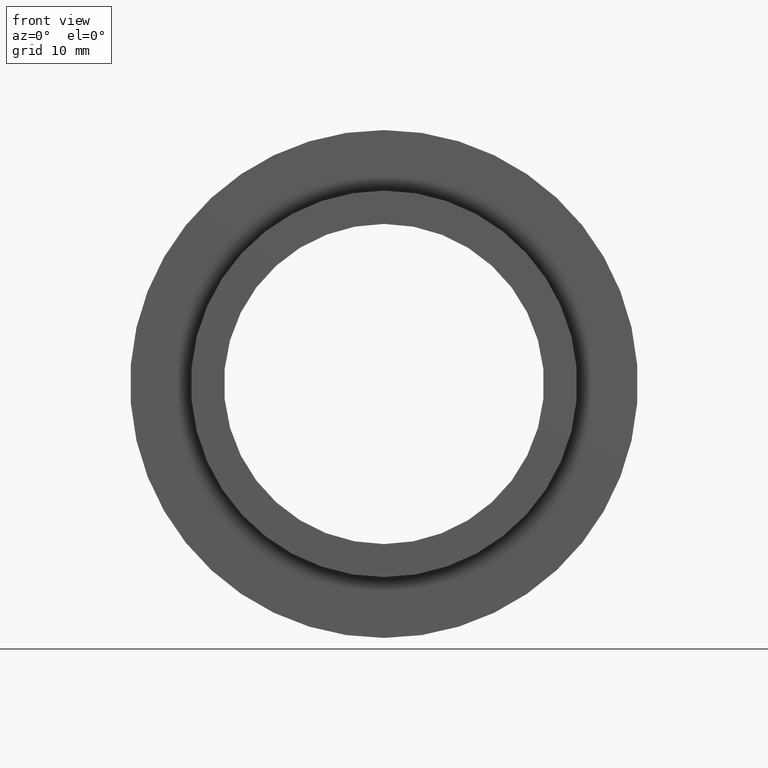
[diagram: clean part render]
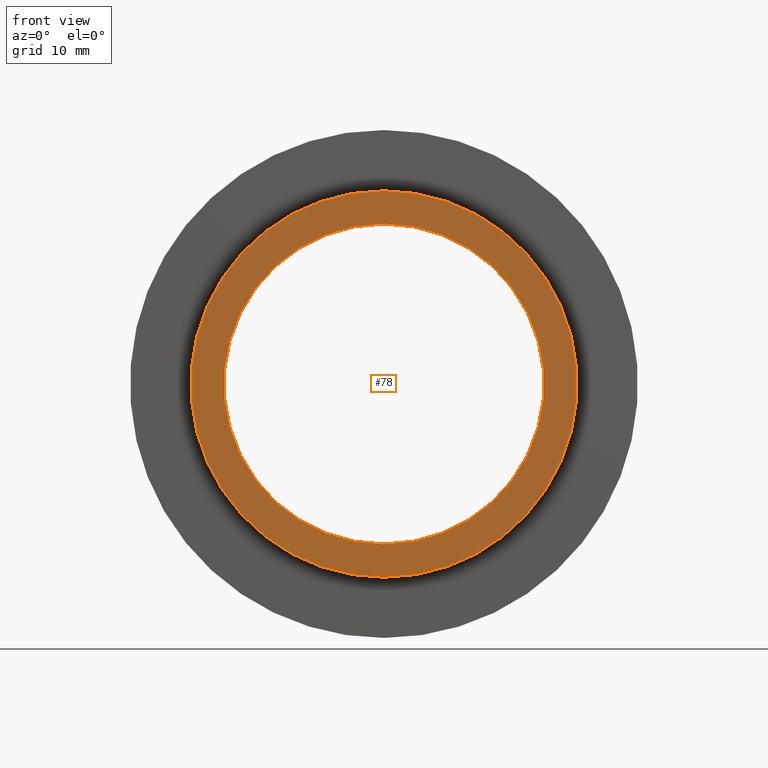
[diagram: same view with one face highlighted and labeled with its STEP entity id]
A machine part, front view. The second image highlights one B-rep face of the part: STEP entity #78.
In plain terms, the highlighted planar face has unit normal (0, 1, 0).
Its self-contained STEP definition (entity closure, byte-faithful):
#23 = AXIS2_PLACEMENT_3D ( 'NONE', #327, #277, #279 ) ;
#49 = DIRECTION ( 'NONE',  ( -0.0000000000000000000, -1.000000000000000000, -0.0000000000000000000 ) ) ;
#55 = AXIS2_PLACEMENT_3D ( 'NONE', #591, #633, #219 ) ;
#74 = CARTESIAN_POINT ( 'NONE',  ( 0.0000000000000000000, -3.508329487826542300E-015, 0.0000000000000000000 ) ) ;
#77 = EDGE_CURVE ( 'NONE', #355, #605, #442, .T. ) ;
#78 = ADVANCED_FACE ( 'NONE', ( #656, #90 ), #122, .F. ) ;
#81 = CIRCLE ( 'NONE', #485, 17.50000000000000000 ) ;
#90 = FACE_OUTER_BOUND ( 'NONE', #102, .T. ) ;
#102 = EDGE_LOOP ( 'NONE', ( #623, #384 ) ) ;
#103 = CARTESIAN_POINT ( 'NONE',  ( 1.775737858763662400E-015, -1.589908991977631700E-015, 14.50000000000000200 ) ) ;
#115 = CARTESIAN_POINT ( 'NONE',  ( 0.0000000000000000000, -3.508329487826542300E-015, -17.50000000000000000 ) ) ;
#121 = AXIS2_PLACEMENT_3D ( 'NONE', #74, #430, #322 ) ;
#122 = PLANE ( 'NONE',  #55 ) ;
#155 = ORIENTED_EDGE ( 'NONE', *, *, #431, .F. ) ;
#162 = EDGE_CURVE ( 'NONE', #375, #642, #341, .T. ) ;
#179 = ORIENTED_EDGE ( 'NONE', *, *, #77, .F. ) ;
#204 = DIRECTION ( 'NONE',  ( -0.0000000000000000000, -1.000000000000000000, -0.0000000000000000000 ) ) ;
#213 = CIRCLE ( 'NONE', #539, 14.50000000000000000 ) ;
#219 = DIRECTION ( 'NONE',  ( 0.0000000000000000000, -0.0000000000000000000, 1.000000000000000000 ) ) ;
#236 = CARTESIAN_POINT ( 'NONE',  ( 0.0000000000000000000, -1.589908991977631700E-015, -14.50000000000000000 ) ) ;
#237 = DIRECTION ( 'NONE',  ( 0.0000000000000000000, 0.0000000000000000000, -1.000000000000000000 ) ) ;
#242 = EDGE_LOOP ( 'NONE', ( #179, #155 ) ) ;
#277 = DIRECTION ( 'NONE',  ( -0.0000000000000000000, -1.000000000000000000, -0.0000000000000000000 ) ) ;
#279 = DIRECTION ( 'NONE',  ( 0.0000000000000000000, 0.0000000000000000000, -1.000000000000000000 ) ) ;
#322 = DIRECTION ( 'NONE',  ( 0.0000000000000000000, 0.0000000000000000000, -1.000000000000000000 ) ) ;
#327 = CARTESIAN_POINT ( 'NONE',  ( 0.0000000000000000000, -1.589908991977631700E-015, 0.0000000000000000000 ) ) ;
#341 = CIRCLE ( 'NONE', #121, 17.50000000000000000 ) ;
#355 = VERTEX_POINT ( 'NONE', #236 ) ;
#375 = VERTEX_POINT ( 'NONE', #661 ) ;
#384 = ORIENTED_EDGE ( 'NONE', *, *, #162, .T. ) ;
#404 = CARTESIAN_POINT ( 'NONE',  ( 0.0000000000000000000, -3.508329487826542300E-015, 0.0000000000000000000 ) ) ;
#409 = DIRECTION ( 'NONE',  ( 0.0000000000000000000, 0.0000000000000000000, -1.000000000000000000 ) ) ;
#430 = DIRECTION ( 'NONE',  ( -0.0000000000000000000, -1.000000000000000000, -0.0000000000000000000 ) ) ;
#431 = EDGE_CURVE ( 'NONE', #605, #355, #213, .T. ) ;
#442 = CIRCLE ( 'NONE', #23, 14.50000000000000000 ) ;
#476 = EDGE_CURVE ( 'NONE', #642, #375, #81, .T. ) ;
#485 = AXIS2_PLACEMENT_3D ( 'NONE', #404, #204, #409 ) ;
#504 = CARTESIAN_POINT ( 'NONE',  ( 0.0000000000000000000, -1.589908991977631700E-015, 0.0000000000000000000 ) ) ;
#539 = AXIS2_PLACEMENT_3D ( 'NONE', #504, #49, #237 ) ;
#591 = CARTESIAN_POINT ( 'NONE',  ( -17.50000000000000000, -2.549119239902087000E-015, 0.0000000000000000000 ) ) ;
#605 = VERTEX_POINT ( 'NONE', #103 ) ;
#623 = ORIENTED_EDGE ( 'NONE', *, *, #476, .T. ) ;
#633 = DIRECTION ( 'NONE',  ( 0.0000000000000000000, 1.000000000000000000, 0.0000000000000000000 ) ) ;
#642 = VERTEX_POINT ( 'NONE', #115 ) ;
#656 = FACE_BOUND ( 'NONE', #242, .T. ) ;
#661 = CARTESIAN_POINT ( 'NONE',  ( 2.143131898507868200E-015, -3.508329487826542300E-015, 17.50000000000000000 ) ) ;